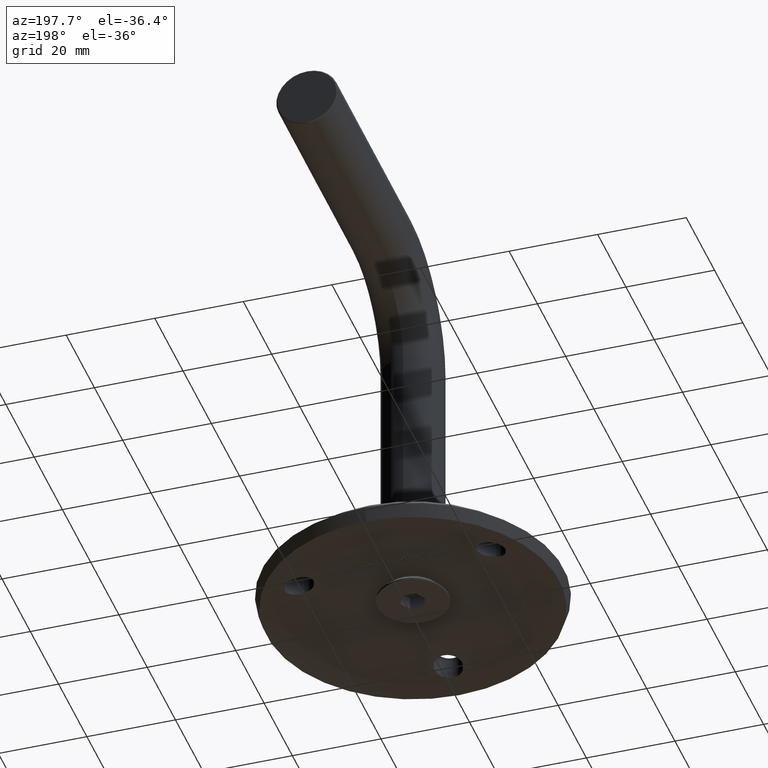
[diagram: clean part render]
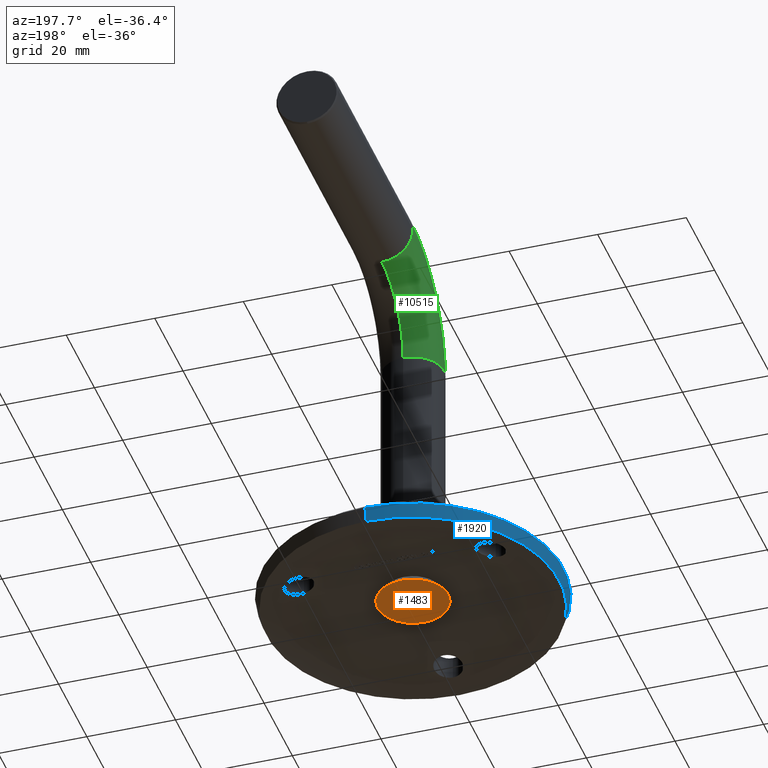
[diagram: same view with three faces highlighted in distinct colors, each labeled with its STEP entity id]
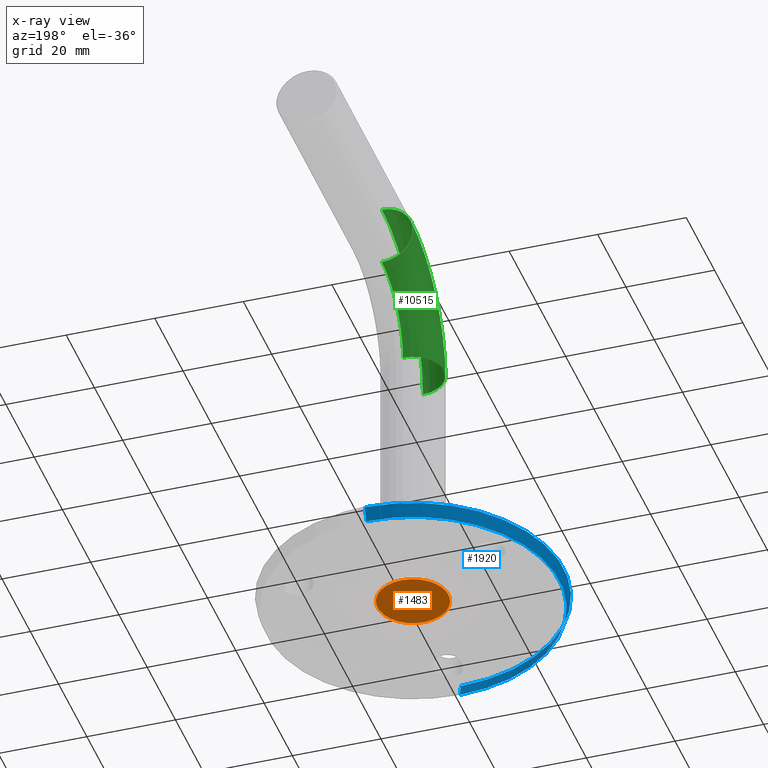
[diagram: x-ray of the same camera — body ghosted, the three highlighted faces saturated]
A machine part, auxiliary view with three faces highlighted in distinct colors.
The next image is the same camera in x-ray (body ghosted, the three faces saturated) — at least one of them is partly hidden behind the body in this view.
Their STEP definitions:

[orange] entity #1483 — the highlighted planar face has unit normal (0, 0, -1).
#74 = VECTOR ( 'NONE', #5590, 1000.000000000000114 ) ;
#119 = VECTOR ( 'NONE', #6758, 1000.000000000000000 ) ;
#141 = DIRECTION ( 'NONE',  ( 1.000000000000000000, -1.502314598737159524E-16, 0.000000000000000000 ) ) ;
#198 = DIRECTION ( 'NONE',  ( 0.4999999999999998890, -0.8660254037844385966, 0.000000000000000000 ) ) ;
#614 = LINE ( 'NONE', #1340, #119 ) ;
#729 = LINE ( 'NONE', #4436, #7777 ) ;
#1244 = CIRCLE ( 'NONE', #5756, 8.000000000000000000 ) ;
#1309 = CARTESIAN_POINT ( 'NONE',  ( 0.000000000000000000, 9.027796614315168061E-32, -6.505213034913026604E-16 ) ) ;
#1340 = CARTESIAN_POINT ( 'NONE',  ( 1.443375672974063662, -2.500000000000000444, 0.000000000000000000 ) ) ;
#1358 = CARTESIAN_POINT ( 'NONE',  ( 1.443375672974065216, 2.499999999999999112, 0.000000000000000000 ) ) ;
#1483 = ADVANCED_FACE ( 'NONE', ( #11942, #7020 ), #7982, .T. ) ;
#1618 = DIRECTION ( 'NONE',  ( -0.000000000000000000, 1.224646799147353207E-16, -1.000000000000000000 ) ) ;
#1822 = ORIENTED_EDGE ( 'NONE', *, *, #12883, .T. ) ;
#1984 = LINE ( 'NONE', #9768, #8177 ) ;
#1986 = VECTOR ( 'NONE', #8328, 1000.000000000000000 ) ;
#2188 = VERTEX_POINT ( 'NONE', #3933 ) ;
#2266 = LINE ( 'NONE', #10896, #74 ) ;
#2277 = EDGE_CURVE ( 'NONE', #11898, #7205, #1984, .T. ) ;
#2792 = ORIENTED_EDGE ( 'NONE', *, *, #11384, .F. ) ;
#2793 = CARTESIAN_POINT ( 'NONE',  ( -2.886751345948127767, 1.178225921581595870E-15, 0.000000000000000000 ) ) ;
#3504 = VERTEX_POINT ( 'NONE', #5589 ) ;
#3698 = EDGE_CURVE ( 'NONE', #12744, #3504, #1244, .T. ) ;
#3933 = CARTESIAN_POINT ( 'NONE',  ( 1.443375672974063662, -2.500000000000000444, 0.000000000000000000 ) ) ;
#4034 = ORIENTED_EDGE ( 'NONE', *, *, #4859, .F. ) ;
#4421 = VECTOR ( 'NONE', #10246, 1000.000000000000227 ) ;
#4436 = CARTESIAN_POINT ( 'NONE',  ( -1.443375672974063439, 2.499999999999999556, 0.000000000000000000 ) ) ;
#4696 = ORIENTED_EDGE ( 'NONE', *, *, #5392, .F. ) ;
#4859 = EDGE_CURVE ( 'NONE', #10858, #9976, #12410, .T. ) ;
#4919 = CARTESIAN_POINT ( 'NONE',  ( -1.443375672974063439, 2.499999999999999556, 0.000000000000000000 ) ) ;
#5392 = EDGE_CURVE ( 'NONE', #2188, #10858, #614, .T. ) ;
#5589 = CARTESIAN_POINT ( 'NONE',  ( 0.000000000000000000, 8.000000000000000000, 3.291961358265798560E-16 ) ) ;
#5590 = DIRECTION ( 'NONE',  ( -0.4999999999999999445, -0.8660254037844385966, -0.000000000000000000 ) ) ;
#5756 = AXIS2_PLACEMENT_3D ( 'NONE', #7684, #6561, #6471 ) ;
#6002 = ORIENTED_EDGE ( 'NONE', *, *, #10300, .F. ) ;
#6333 = AXIS2_PLACEMENT_3D ( 'NONE', #9085, #1618, #11360 ) ;
#6471 = DIRECTION ( 'NONE',  ( 0.000000000000000000, 1.000000000000000000, 1.224646799147353207E-16 ) ) ;
#6561 = DIRECTION ( 'NONE',  ( -0.000000000000000000, 1.224646799147353207E-16, -1.000000000000000000 ) ) ;
#6758 = DIRECTION ( 'NONE',  ( -1.000000000000000000, 0.000000000000000000, 0.000000000000000000 ) ) ;
#6904 = VERTEX_POINT ( 'NONE', #4919 ) ;
#7020 = FACE_OUTER_BOUND ( 'NONE', #9917, .T. ) ;
#7205 = VERTEX_POINT ( 'NONE', #11838 ) ;
#7298 = LINE ( 'NONE', #2793, #4421 ) ;
#7684 = CARTESIAN_POINT ( 'NONE',  ( 0.000000000000000000, 9.027796614315168061E-32, -6.505213034913026604E-16 ) ) ;
#7777 = VECTOR ( 'NONE', #141, 1000.000000000000000 ) ;
#7982 = PLANE ( 'NONE',  #6333 ) ;
#8177 = VECTOR ( 'NONE', #198, 1000.000000000000227 ) ;
#8328 = DIRECTION ( 'NONE',  ( -0.4999999999999996669, 0.8660254037844388186, 0.000000000000000000 ) ) ;
#8875 = CARTESIAN_POINT ( 'NONE',  ( -1.443375672974063439, -2.500000000000000444, 0.000000000000000000 ) ) ;
#9085 = CARTESIAN_POINT ( 'NONE',  ( 0.000000000000000000, 8.000000000000000000, 6.505213034913026604E-16 ) ) ;
#9768 = CARTESIAN_POINT ( 'NONE',  ( 1.443375672974065216, 2.499999999999999112, 0.000000000000000000 ) ) ;
#9917 = EDGE_LOOP ( 'NONE', ( #1822, #12584 ) ) ;
#9949 = EDGE_CURVE ( 'NONE', #9976, #6904, #7298, .T. ) ;
#9976 = VERTEX_POINT ( 'NONE', #12391 ) ;
#10246 = DIRECTION ( 'NONE',  ( 0.5000000000000002220, 0.8660254037844384856, 0.000000000000000000 ) ) ;
#10300 = EDGE_CURVE ( 'NONE', #7205, #2188, #2266, .T. ) ;
#10440 = ORIENTED_EDGE ( 'NONE', *, *, #2277, .F. ) ;
#10498 = CARTESIAN_POINT ( 'NONE',  ( -1.443375672974063439, -2.500000000000000444, 0.000000000000000000 ) ) ;
#10858 = VERTEX_POINT ( 'NONE', #8875 ) ;
#10896 = CARTESIAN_POINT ( 'NONE',  ( 2.886751345948128655, 4.505612662475625554E-16, 0.000000000000000000 ) ) ;
#10946 = ORIENTED_EDGE ( 'NONE', *, *, #9949, .F. ) ;
#11035 = DIRECTION ( 'NONE',  ( -0.000000000000000000, 1.224646799147353207E-16, -1.000000000000000000 ) ) ;
#11235 = AXIS2_PLACEMENT_3D ( 'NONE', #1309, #11035, #12124 ) ;
#11360 = DIRECTION ( 'NONE',  ( 0.000000000000000000, 1.000000000000000000, 1.224646799147353207E-16 ) ) ;
#11384 = EDGE_CURVE ( 'NONE', #6904, #11898, #729, .T. ) ;
#11838 = CARTESIAN_POINT ( 'NONE',  ( 2.886751345948128655, 4.505612662475625554E-16, 0.000000000000000000 ) ) ;
#11898 = VERTEX_POINT ( 'NONE', #1358 ) ;
#11942 = FACE_BOUND ( 'NONE', #13293, .T. ) ;
#12124 = DIRECTION ( 'NONE',  ( 0.000000000000000000, 1.000000000000000000, 1.224646799147353207E-16 ) ) ;
#12391 = CARTESIAN_POINT ( 'NONE',  ( -2.886751345948128655, 8.673617379884035472E-16, -4.336808689942017736E-16 ) ) ;
#12410 = LINE ( 'NONE', #10498, #1986 ) ;
#12584 = ORIENTED_EDGE ( 'NONE', *, *, #3698, .T. ) ;
#12594 = CARTESIAN_POINT ( 'NONE',  ( 9.797174393178825657E-16, -8.000000000000000000, -1.630238742809185423E-15 ) ) ;
#12744 = VERTEX_POINT ( 'NONE', #12594 ) ;
#12883 = EDGE_CURVE ( 'NONE', #3504, #12744, #13399, .T. ) ;
#13293 = EDGE_LOOP ( 'NONE', ( #4034, #4696, #6002, #10440, #2792, #10946 ) ) ;
#13399 = CIRCLE ( 'NONE', #11235, 8.000000000000000000 ) ;

[blue] entity #1920 — the highlighted conical surface has half-angle 16.97 deg.
#411 = CARTESIAN_POINT ( 'NONE',  ( 0.000000000000000000, 0.000000000000000000, 33.06310994183501606 ) ) ;
#683 = ORIENTED_EDGE ( 'NONE', *, *, #9146, .F. ) ;
#767 = VERTEX_POINT ( 'NONE', #4503 ) ;
#935 = VECTOR ( 'NONE', #11129, 1000.000000000000000 ) ;
#1035 = DIRECTION ( 'NONE',  ( 0.000000000000000000, 0.000000000000000000, -1.000000000000000000 ) ) ;
#1118 = EDGE_CURVE ( 'NONE', #2099, #4491, #8195, .T. ) ;
#1234 = EDGE_LOOP ( 'NONE', ( #683, #2371, #8770, #8105 ) ) ;
#1920 = ADVANCED_FACE ( 'NONE', ( #11773 ), #3454, .T. ) ;
#2099 = VERTEX_POINT ( 'NONE', #2449 ) ;
#2371 = ORIENTED_EDGE ( 'NONE', *, *, #2589, .F. ) ;
#2434 = DIRECTION ( 'NONE',  ( 0.000000000000000000, 1.000000000000000000, 0.000000000000000000 ) ) ;
#2449 = CARTESIAN_POINT ( 'NONE',  ( 4.163799117101000559E-15, 3.070234033247562611, 34.00000000000000000 ) ) ;
#2472 = AXIS2_PLACEMENT_3D ( 'NONE', #10136, #11393, #4869 ) ;
#2589 = EDGE_CURVE ( 'NONE', #4817, #767, #13748, .T. ) ;
#3006 = AXIS2_PLACEMENT_3D ( 'NONE', #6496, #5235, #1035 ) ;
#3454 = CONICAL_SURFACE ( 'NONE', #7594, 33.06310994183501606, 0.2961772688391122177 ) ;
#4491 = VERTEX_POINT ( 'NONE', #9980 ) ;
#4503 = CARTESIAN_POINT ( 'NONE',  ( 0.000000000000000000, -6.938893903907228378E-15, -33.06310994183502316 ) ) ;
#4667 = EDGE_CURVE ( 'NONE', #4817, #2099, #6671, .T. ) ;
#4784 = CARTESIAN_POINT ( 'NONE',  ( 4.049063176012528006E-15, 0.000000000000000000, -33.06310994183501606 ) ) ;
#4817 = VERTEX_POINT ( 'NONE', #12640 ) ;
#4869 = DIRECTION ( 'NONE',  ( 0.000000000000000000, 0.000000000000000000, -1.000000000000000000 ) ) ;
#5235 = DIRECTION ( 'NONE',  ( 0.000000000000000000, -1.000000000000000000, 0.000000000000000000 ) ) ;
#6496 = CARTESIAN_POINT ( 'NONE',  ( 0.000000000000000000, 0.000000000000000000, 0.000000000000000000 ) ) ;
#6671 = LINE ( 'NONE', #411, #7004 ) ;
#7004 = VECTOR ( 'NONE', #10252, 1000.000000000000000 ) ;
#7594 = AXIS2_PLACEMENT_3D ( 'NONE', #8867, #2434, #9925 ) ;
#8105 = ORIENTED_EDGE ( 'NONE', *, *, #1118, .T. ) ;
#8195 = CIRCLE ( 'NONE', #2472, 34.00000000000000000 ) ;
#8770 = ORIENTED_EDGE ( 'NONE', *, *, #4667, .T. ) ;
#8867 = CARTESIAN_POINT ( 'NONE',  ( 0.000000000000000000, 0.000000000000000000, 0.000000000000000000 ) ) ;
#9146 = EDGE_CURVE ( 'NONE', #767, #4491, #9153, .T. ) ;
#9153 = LINE ( 'NONE', #4784, #935 ) ;
#9925 = DIRECTION ( 'NONE',  ( 0.000000000000000000, 0.000000000000000000, 1.000000000000000000 ) ) ;
#9980 = CARTESIAN_POINT ( 'NONE',  ( 0.000000000000000000, 3.070234033247562611, -34.00000000000000000 ) ) ;
#10136 = CARTESIAN_POINT ( 'NONE',  ( 0.000000000000000000, 3.070234033247562611, 0.000000000000000000 ) ) ;
#10252 = DIRECTION ( 'NONE',  ( 0.000000000000000000, 0.9564592003886491778, 0.2918660617336416019 ) ) ;
#11129 = DIRECTION ( 'NONE',  ( 3.574328382818480219E-17, 0.9564592003886491778, -0.2918660617336416019 ) ) ;
#11393 = DIRECTION ( 'NONE',  ( 0.000000000000000000, -1.000000000000000000, 0.000000000000000000 ) ) ;
#11773 = FACE_OUTER_BOUND ( 'NONE', #1234, .T. ) ;
#12640 = CARTESIAN_POINT ( 'NONE',  ( 4.049063176012528795E-15, -6.938893903907228378E-15, 33.06310994183502316 ) ) ;
#13748 = CIRCLE ( 'NONE', #3006, 33.06310994183501606 ) ;

[green] entity #10515 — the highlighted toroidal blend (fillet) surface has major radius 22 mm and minor (blend) radius 7 mm.
#649 = AXIS2_PLACEMENT_3D ( 'NONE', #4126, #7434, #9419 ) ;
#770 = CIRCLE ( 'NONE', #649, 29.00000000000000355 ) ;
#915 = CARTESIAN_POINT ( 'NONE',  ( 8.572527594031467273E-16, 21.99999999999999289, 68.00000000000000000 ) ) ;
#1576 = DIRECTION ( 'NONE',  ( 0.000000000000000000, 0.000000000000000000, 1.000000000000000000 ) ) ;
#1661 = CARTESIAN_POINT ( 'NONE',  ( 8.572527594031474176E-16, 21.99999999999999289, 53.00000000000001421 ) ) ;
#1663 = DIRECTION ( 'NONE',  ( 0.000000000000000000, 0.000000000000000000, 1.000000000000000000 ) ) ;
#3372 = EDGE_LOOP ( 'NONE', ( #7860, #6429, #4203, #8626 ) ) ;
#3511 = EDGE_CURVE ( 'NONE', #10441, #9279, #8949, .T. ) ;
#3768 = DIRECTION ( 'NONE',  ( -1.000000000000000000, -0.000000000000000000, 0.000000000000000000 ) ) ;
#4126 = CARTESIAN_POINT ( 'NONE',  ( 0.000000000000000000, 21.99999999999999289, 53.00000000000001421 ) ) ;
#4203 = ORIENTED_EDGE ( 'NONE', *, *, #11495, .F. ) ;
#4603 = DIRECTION ( 'NONE',  ( 0.000000000000000000, 0.000000000000000000, 1.000000000000000000 ) ) ;
#4686 = DIRECTION ( 'NONE',  ( -1.000000000000000000, -0.000000000000000000, 0.000000000000000000 ) ) ;
#4702 = AXIS2_PLACEMENT_3D ( 'NONE', #12505, #6888, #8111 ) ;
#5767 = TOROIDAL_SURFACE ( 'NONE', #11777, 22.00000000000000000, 7.000000000000000888 ) ;
#6296 = CARTESIAN_POINT ( 'NONE',  ( 0.000000000000000000, 21.99999999999999289, 82.00000000000001421 ) ) ;
#6429 = ORIENTED_EDGE ( 'NONE', *, *, #7113, .T. ) ;
#6585 = AXIS2_PLACEMENT_3D ( 'NONE', #6782, #4603, #6691 ) ;
#6691 = DIRECTION ( 'NONE',  ( 1.000000000000000000, 0.000000000000000000, 0.000000000000000000 ) ) ;
#6782 = CARTESIAN_POINT ( 'NONE',  ( 0.000000000000000000, -6.949885547581345981E-15, 53.00000000000000000 ) ) ;
#6888 = DIRECTION ( 'NONE',  ( 0.000000000000000000, 1.000000000000000000, -1.311299159921008727E-16 ) ) ;
#7113 = EDGE_CURVE ( 'NONE', #12246, #9249, #770, .T. ) ;
#7434 = DIRECTION ( 'NONE',  ( -1.000000000000000000, -0.000000000000000000, 0.000000000000000000 ) ) ;
#7750 = EDGE_CURVE ( 'NONE', #10441, #12246, #12060, .T. ) ;
#7860 = ORIENTED_EDGE ( 'NONE', *, *, #7750, .T. ) ;
#8080 = CARTESIAN_POINT ( 'NONE',  ( 0.000000000000000000, 21.99999999999999289, 53.00000000000001421 ) ) ;
#8111 = DIRECTION ( 'NONE',  ( 1.000000000000000000, 0.000000000000000000, 0.000000000000000000 ) ) ;
#8626 = ORIENTED_EDGE ( 'NONE', *, *, #3511, .F. ) ;
#8944 = CARTESIAN_POINT ( 'NONE',  ( 8.572527594031474176E-16, 6.999999999999993783, 53.00000000000000000 ) ) ;
#8949 = CIRCLE ( 'NONE', #10384, 14.99999999999999289 ) ;
#9249 = VERTEX_POINT ( 'NONE', #6296 ) ;
#9279 = VERTEX_POINT ( 'NONE', #915 ) ;
#9419 = DIRECTION ( 'NONE',  ( 0.000000000000000000, 0.000000000000000000, 1.000000000000000000 ) ) ;
#9502 = FACE_OUTER_BOUND ( 'NONE', #3372, .T. ) ;
#10384 = AXIS2_PLACEMENT_3D ( 'NONE', #1661, #4686, #1576 ) ;
#10441 = VERTEX_POINT ( 'NONE', #8944 ) ;
#10515 = ADVANCED_FACE ( 'NONE', ( #9502 ), #5767, .T. ) ;
#11495 = EDGE_CURVE ( 'NONE', #9279, #9249, #12862, .T. ) ;
#11777 = AXIS2_PLACEMENT_3D ( 'NONE', #8080, #3768, #1663 ) ;
#12060 = CIRCLE ( 'NONE', #6585, 7.000000000000000888 ) ;
#12246 = VERTEX_POINT ( 'NONE', #13738 ) ;
#12505 = CARTESIAN_POINT ( 'NONE',  ( 0.000000000000000000, 21.99999999999999289, 75.00000000000001421 ) ) ;
#12862 = CIRCLE ( 'NONE', #4702, 7.000000000000000888 ) ;
#13738 = CARTESIAN_POINT ( 'NONE',  ( 0.000000000000000000, -7.000000000000007994, 53.00000000000000000 ) ) ;